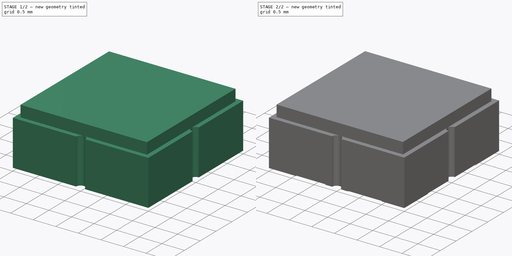
[diagram: build sequence overview — one tinted view per stage of 2, left to right]
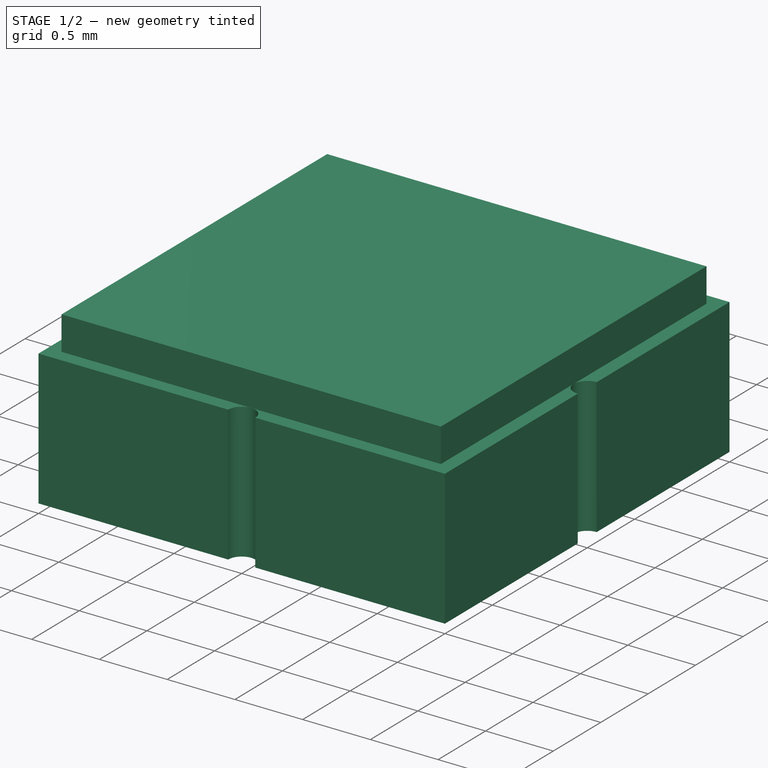
[diagram: stage 1 of 2 — iso view after this stage's code; geometry added in this stage tinted green]
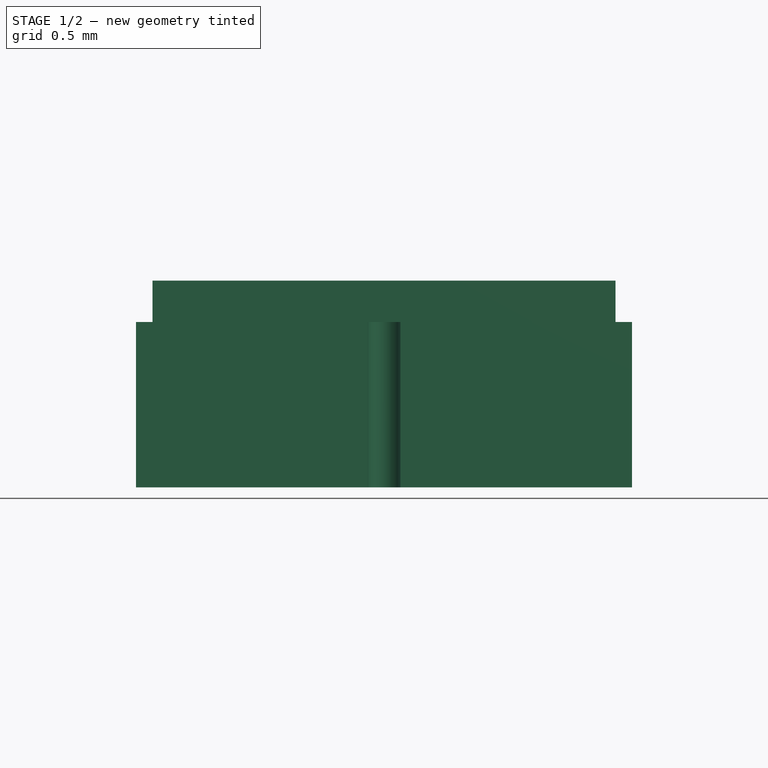
[diagram: stage 1 of 2 — front view after this stage's code; geometry added in this stage tinted green]
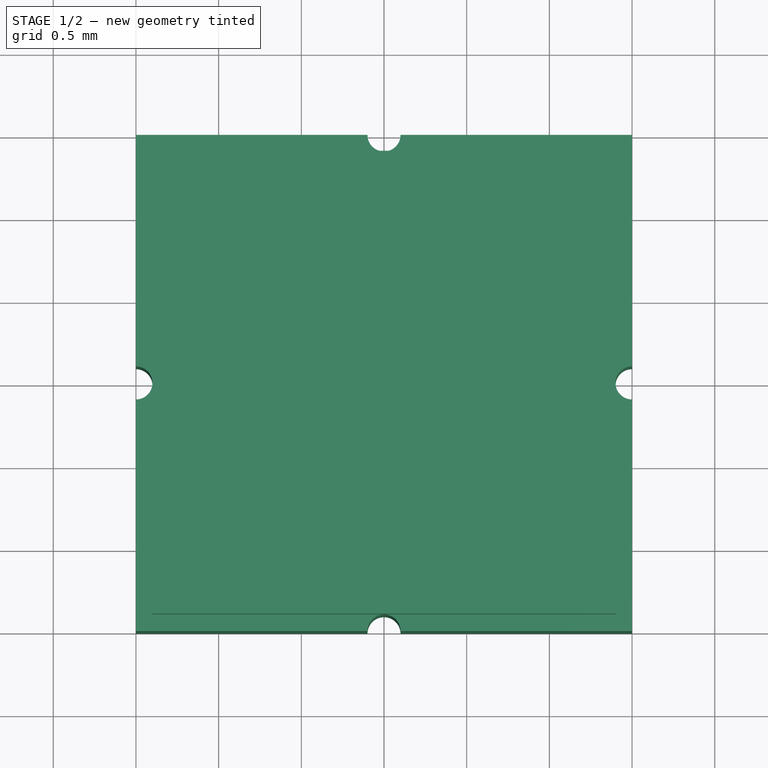
[diagram: stage 1 of 2 — top view after this stage's code; geometry added in this stage tinted green]
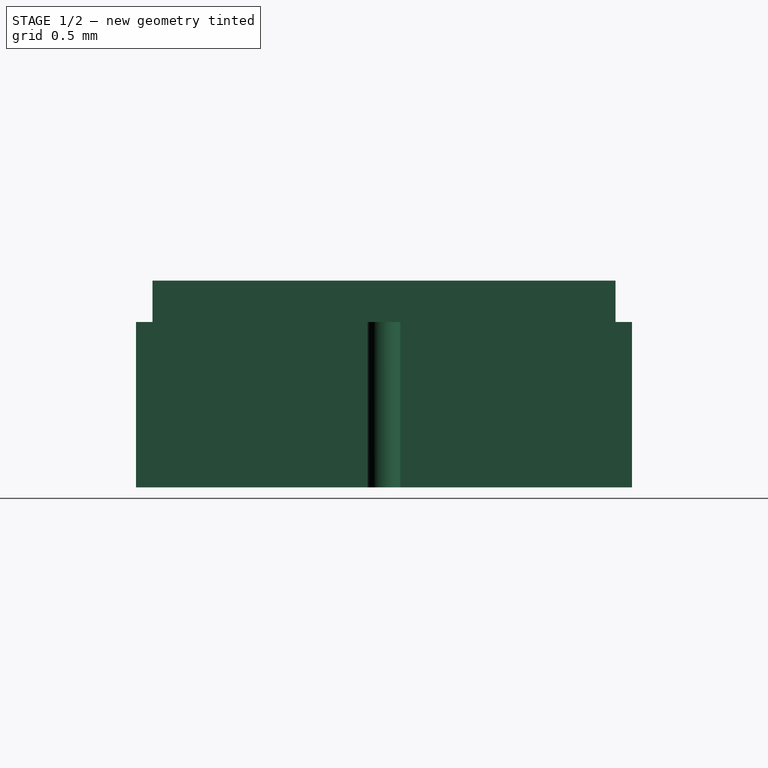
[diagram: stage 1 of 2 — right view after this stage's code; geometry added in this stage tinted green]
FCSTD DOCUMENT  (FreeCAD 0.19R)
Label: DCC6C
License: CC-BY-SA 4.0
LicenseURL: https://creativecommons.org/licenses/by-sa/4.0/
objects: Sketcher::SketchObject×3, PartDesign::Pad×3, PartDesign::Body×1
note: 10 computed .brp shape members not serialized (recipe doc carries the construction recipe); baked Part::Feature solids carry a one-line shape summary decoded from their .brp

FEATURE [Sketcher::SketchObject] Sketch
  FullyConstrained = true
  MapMode = 5
  Support = -> [XY_Plane]
  sketch-geometry (27):
    g0: Circle CenterX=0 CenterY=0 CenterZ=0 NormalX=0 NormalY=0 NormalZ=1 AngleXU=0 Radius=2.12132
    g1: GeomPoint X=-0.1 Y=-1.5 Z=0
    g2: GeomPoint X=0.1 Y=-1.5 Z=0
    g3: LineSegment StartX=-1.5 StartY=-1.5 StartZ=0 EndX=-0.1 EndY=-1.5 EndZ=0
    g4: LineSegment StartX=0.1 StartY=-1.5 StartZ=0 EndX=1.5 EndY=-1.5 EndZ=0
    g5: ArcOfCircle CenterX=0 CenterY=-1.5 CenterZ=0 NormalX=0 NormalY=0 NormalZ=1 AngleXU=0 Radius=0.1 StartAngle=6e-16 EndAngle=3.14159
    g6: GeomPoint X=1.5 Y=0.1 Z=0
    g7: GeomPoint X=-1.5 Y=-0.1 Z=0
    g8: GeomPoint X=-1.5 Y=0.1 Z=0
    g9: GeomPoint X=-0.1 Y=1.5 Z=0
    g10: GeomPoint X=0.1 Y=1.5 Z=0
    g11: LineSegment StartX=-1.5 StartY=1.5 StartZ=0 EndX=-1.5 EndY=0.1 EndZ=0
    g12: LineSegment StartX=-1.5 StartY=-0.1 StartZ=0 EndX=-1.5 EndY=-1.5 EndZ=0
    g13: LineSegment StartX=1.5 StartY=1.5 StartZ=0 EndX=1.5 EndY=0.1 EndZ=0
    g14: LineSegment StartX=1.5 StartY=-0.1 StartZ=0 EndX=1.5 EndY=-1.5 EndZ=0
    g15: GeomPoint X=1.5 Y=0 Z=0
    g16: GeomPoint X=-1.5 Y=0 Z=0
    g17: LineSegment StartX=-1.5 StartY=1.5 StartZ=0 EndX=-0.1 EndY=1.5 EndZ=0
    g18: LineSegment StartX=0.1 StartY=1.5 StartZ=0 EndX=1.5 EndY=1.5 EndZ=0
    g19: GeomPoint X=0 Y=1.5 Z=0
    g20: LineSegment StartX=0.1 StartY=-1.5 StartZ=0 EndX=-0.1 EndY=-1.5 EndZ=0
    g21: LineSegment StartX=1.5 StartY=-0.1 StartZ=0 EndX=1.5 EndY=0.1 EndZ=0
    g22: LineSegment StartX=-1.5 StartY=0.1 StartZ=0 EndX=-1.5 EndY=-0.1 EndZ=0
    g23: LineSegment StartX=0.1 StartY=1.5 StartZ=0 EndX=-0.1 EndY=1.5 EndZ=0
    g24: ArcOfCircle CenterX=-1.5 CenterY=0 CenterZ=0 NormalX=0 NormalY=0 NormalZ=1 AngleXU=0 Radius=0.1 StartAngle=4.71239 EndAngle=7.85398
    g25: ArcOfCircle CenterX=1.5 CenterY=0 CenterZ=0 NormalX=0 NormalY=0 NormalZ=1 AngleXU=0 Radius=0.1 StartAngle=1.5708 EndAngle=4.71239
    g26: ArcOfCircle CenterX=0 CenterY=1.5 CenterZ=0 NormalX=0 NormalY=0 NormalZ=1 AngleXU=0 Radius=0.1 StartAngle=3.14159 EndAngle=6.28319
  constraints (60):
    c: DistanceX(g11,g13) = 3
    c: DistanceY(g3,g11) = 3
    c: Coincident(g0,g-1)
    c: PointOnObject(g11,g0)
    c: PointOnObject(g13,g0)
    c: PointOnObject(g4,g0)
    c: Coincident(g3,g1)
    c: Horizontal(g3)
    c: Coincident(g4,g2)
    c: Horizontal(g4)
    c: PointOnObject(g5,g-2)
    c: Coincident(g5,g3)
    c: Coincident(g5,g4)
    c: Coincident(g11,g8)
    c: Vertical(g11)
    c: Coincident(g12,g7)
    c: Coincident(g12,g3)
    c: Vertical(g12)
    c: Coincident(g13,g6)
    c: Vertical(g13)
    c: Coincident(g14,g4)
    c: Vertical(g14)
    c: DistanceX(g3,g4) = 0.2
    c: PointOnObject(g15,g-1)
    c: PointOnObject(g16,g-1)
    c: Coincident(g17,g11)
    c: Coincident(g17,g9)
    c: Horizontal(g17)
    c: Coincident(g18,g10)
    c: Coincident(g18,g13)
    c: Horizontal(g18)
    c: Coincident(g20,g4)
    c: Coincident(g20,g3)
    c: Horizontal(g20)
    c: PointOnObject(g5,g20)
    c: Coincident(g21,g14)
    c: Coincident(g21,g13)
    c: Vertical(g21)
    c: Coincident(g22,g11)
    c: Coincident(g22,g12)
    c: Vertical(g22)
    c: Coincident(g23,g18)
    c: Coincident(g23,g17)
    c: Horizontal(g23)
    c: Equal(g23,g21)
    c: Equal(g21,g22)
    c: Equal(g22,g20)
    c: Coincident(g24,g11)
    c: Coincident(g24,g12)
    c: Coincident(g24,g16)
    c: PointOnObject(g24,g22)
    c: Coincident(g25,g14)
    c: Coincident(g25,g13)
    c: Coincident(g25,g15)
    c: PointOnObject(g25,g21)
    c: Coincident(g26,g17)
    c: Coincident(g26,g18)
    c: Coincident(g26,g19)
    c: PointOnObject(g26,g23)
    c: PointOnObject(g26,g-2)
FEATURE [PartDesign::Pad] Pad
  Direction = (1,1,1)
  Length = 1
  Length2 = 100
  Profile = -> Sketch
  Type = 0
FEATURE [Sketcher::SketchObject] Sketch001
  FullyConstrained = true
  MapMode = 5
  Placement = pos=(0,0,1) rot=(0,0,1;0rad)
  Support = -> [Pad]
  sketch-geometry (5):
    g0: LineSegment StartX=1.4 StartY=-1.4 StartZ=0 EndX=-1.4 EndY=-1.4 EndZ=0
    g1: LineSegment StartX=-1.4 StartY=-1.4 StartZ=0 EndX=-1.4 EndY=1.4 EndZ=0
    g2: LineSegment StartX=-1.4 StartY=1.4 StartZ=0 EndX=1.4 EndY=1.4 EndZ=0
    g3: LineSegment StartX=1.4 StartY=1.4 StartZ=0 EndX=1.4 EndY=-1.4 EndZ=0
    g4: Circle CenterX=0 CenterY=0 CenterZ=0 NormalX=0 NormalY=0 NormalZ=1 AngleXU=0 Radius=1.9799
  constraints (14):
    c: Coincident(g0,g1)
    c: Coincident(g1,g2)
    c: Coincident(g2,g3)
    c: Coincident(g3,g0)
    c: Horizontal(g0)
    c: Horizontal(g2)
    c: Vertical(g1)
    c: Vertical(g3)
    c: Coincident(g4,g-1)
    c: PointOnObject(g2,g4)
    c: PointOnObject(g1,g4)
    c: PointOnObject(g0,g4)
    c: DistanceX(g2,g2) = 2.8
    c: DistanceY(g1,g1) = 2.8
FEATURE [PartDesign::Pad] Pad001
  BaseFeature = -> Pad
  Direction = (1,1,1)
  Length = 0.25
  Length2 = 100
  Profile = -> Sketch001
  Type = 0
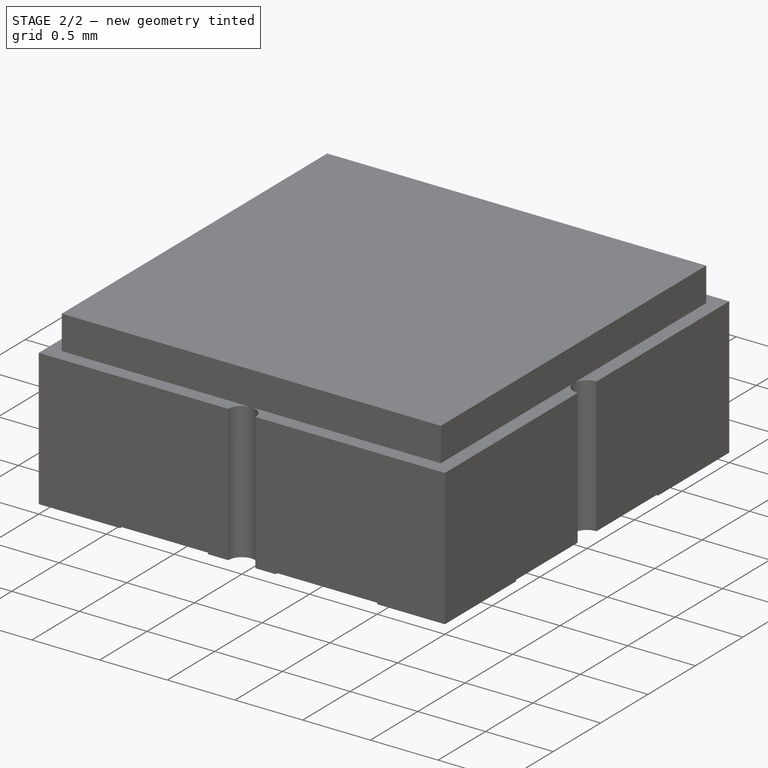
[diagram: stage 2 of 2 — iso view after this stage's code; geometry added in this stage tinted green]
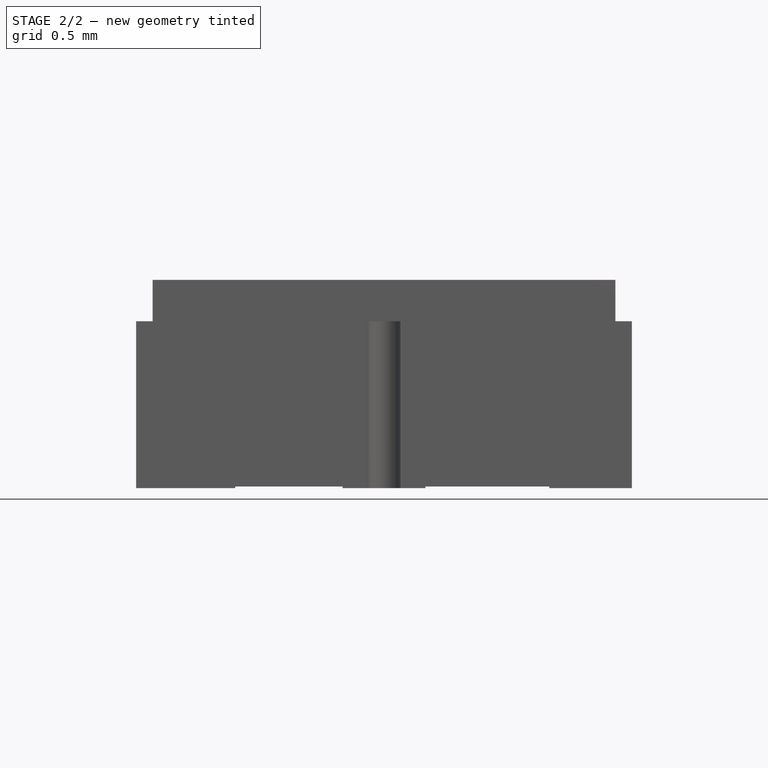
[diagram: stage 2 of 2 — front view after this stage's code; geometry added in this stage tinted green]
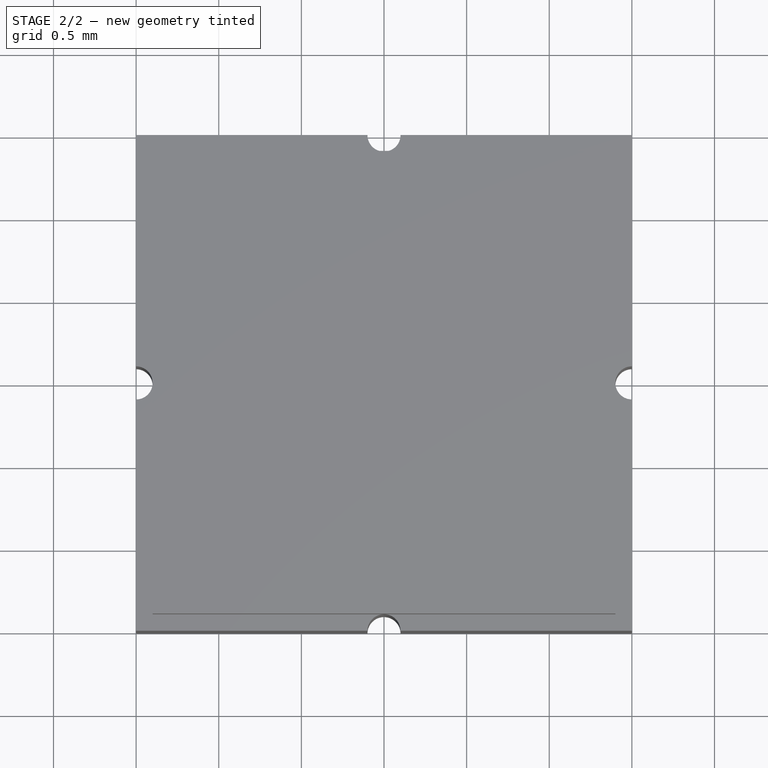
[diagram: stage 2 of 2 — top view after this stage's code; geometry added in this stage tinted green]
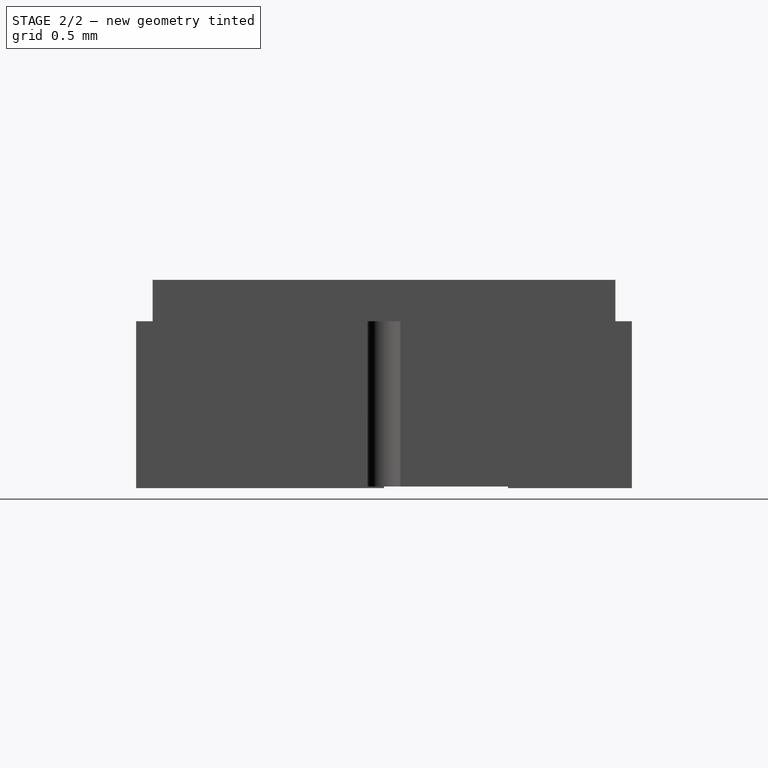
[diagram: stage 2 of 2 — right view after this stage's code; geometry added in this stage tinted green]
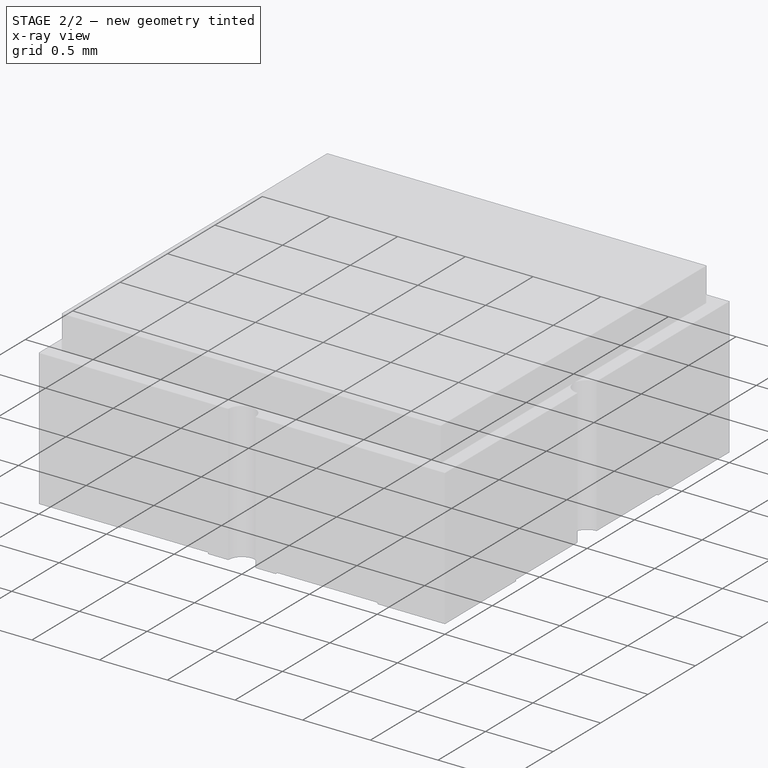
[diagram: stage 2 of 2 — x-ray composite at the iso view; earlier geometry ghosted, this stage's added geometry solid]
FEATURE [Sketcher::SketchObject] Sketch002
  ExternalGeometry = -> [Pad001]
  FullyConstrained = true
  MapMode = 5
  Placement = pos=(0,0,0) rot=(1,0,0;3.14159rad)
  Support = -> [Pad001]
  sketch-geometry (36):
    g0: LineSegment StartX=-1.5 StartY=1.5 StartZ=0 EndX=-0.9 EndY=1.5 EndZ=0
    g1: LineSegment StartX=-0.9 StartY=1.5 StartZ=0 EndX=-0.9 EndY=0 EndZ=0
    g2: LineSegment StartX=-0.9 StartY=0 StartZ=0 EndX=-1.4 EndY=0 EndZ=0
    g3: LineSegment StartX=0.25 StartY=0.75 StartZ=0 EndX=-0.25 EndY=0.75 EndZ=0
    g4: LineSegment StartX=-0.25 StartY=0.75 StartZ=0 EndX=-0.25 EndY=1.5 EndZ=0
    g5: LineSegment StartX=0.25 StartY=1.5 StartZ=0 EndX=0.25 EndY=0.75 EndZ=0
    g6: LineSegment StartX=1.5 StartY=1.5 StartZ=0 EndX=1 EndY=1.5 EndZ=0
    g7: LineSegment StartX=1 StartY=1.5 StartZ=0 EndX=1 EndY=0.75 EndZ=0
    g8: LineSegment StartX=1 StartY=0.75 StartZ=0 EndX=1.5 EndY=0.75 EndZ=0
    g9: LineSegment StartX=1.5 StartY=0.75 StartZ=0 EndX=1.5 EndY=1.5 EndZ=0
    g10: LineSegment StartX=1.5 StartY=-1.5 StartZ=0 EndX=1 EndY=-1.5 EndZ=0
    g11: LineSegment StartX=1 StartY=-1.5 StartZ=0 EndX=1 EndY=-0.75 EndZ=0
    g12: LineSegment StartX=1 StartY=-0.75 StartZ=0 EndX=1.5 EndY=-0.75 EndZ=0
    g13: LineSegment StartX=1.5 StartY=-0.75 StartZ=0 EndX=1.5 EndY=-1.5 EndZ=0
    g14: LineSegment StartX=-0.25 StartY=-1.5 StartZ=0 EndX=-0.25 EndY=-0.75 EndZ=0
    g15: LineSegment StartX=-0.25 StartY=-0.75 StartZ=0 EndX=0.25 EndY=-0.75 EndZ=0
    g16: LineSegment StartX=0.25 StartY=-0.75 StartZ=0 EndX=0.25 EndY=-1.5 EndZ=0
    g17: LineSegment StartX=-1 StartY=-1.5 StartZ=0 EndX=-1.5 EndY=-1.5 EndZ=0
    g18: LineSegment StartX=-1.5 StartY=-1.5 StartZ=0 EndX=-1.5 EndY=-0.75 EndZ=0
    g19: LineSegment StartX=-1.5 StartY=-0.75 StartZ=0 EndX=-1 EndY=-0.75 EndZ=0
    g20: LineSegment StartX=-1 StartY=-0.75 StartZ=0 EndX=-1 EndY=-1.5 EndZ=0
    g21: LineSegment StartX=0.1 StartY=1.5 StartZ=0 EndX=-0.1 EndY=1.5 EndZ=0
    g22: LineSegment StartX=0.1 StartY=-1.5 StartZ=0 EndX=-0.1 EndY=-1.5 EndZ=0
    g23: GeomPoint X=0 Y=1.5 Z=0
    g24: ArcOfCircle CenterX=0 CenterY=1.5 CenterZ=0 NormalX=0 NormalY=0 NormalZ=1 AngleXU=0 Radius=0.25 StartAngle=1.3e-15 EndAngle=3.14159
    g25: GeomPoint X=0 Y=-1.5 Z=0
    g26: ArcOfCircle CenterX=0 CenterY=-1.5 CenterZ=0 NormalX=0 NormalY=0 NormalZ=1 AngleXU=0 Radius=0.25 StartAngle=3.14159 EndAngle=6.28319
    g27: LineSegment StartX=0.25 StartY=-1.5 StartZ=0 EndX=0.1 EndY=-1.5 EndZ=0
    g28: LineSegment StartX=-0.1 StartY=-1.5 StartZ=0 EndX=-0.25 EndY=-1.5 EndZ=0
    g29: ArcOfCircle CenterX=0 CenterY=-1.5 CenterZ=0 NormalX=0 NormalY=0 NormalZ=1 AngleXU=0 Radius=0.1 StartAngle=-9e-16 EndAngle=3.14159
    g30: LineSegment StartX=-0.25 StartY=1.5 StartZ=0 EndX=-0.1 EndY=1.5 EndZ=0
    g31: LineSegment StartX=0.1 StartY=1.5 StartZ=0 EndX=0.25 EndY=1.5 EndZ=0
    g32: ArcOfCircle CenterX=0 CenterY=1.5 CenterZ=0 NormalX=0 NormalY=0 NormalZ=1 AngleXU=0 Radius=0.1 StartAngle=3.14159 EndAngle=6.28319
    g33: LineSegment StartX=-1.5 StartY=1.5 StartZ=0 EndX=-1.5 EndY=0.1 EndZ=0
    g34: LineSegment StartX=-1.5 StartY=0.1 StartZ=0 EndX=-1.5 EndY=0 EndZ=0
    g35: ArcOfCircle CenterX=-1.5 CenterY=0 CenterZ=0 NormalX=0 NormalY=0 NormalZ=1 AngleXU=0 Radius=0.1 StartAngle=0 EndAngle=1.5708
  constraints (93):
    c: Coincident(g0,g1)
    c: Coincident(g1,g2)
    c: Horizontal(g0)
    c: Horizontal(g2)
    c: Vertical(g1)
    c: DistanceX(g0,g0) = 0.6
    c: Coincident(g3,g4)
    c: Coincident(g5,g3)
    c: Horizontal(g3)
    c: Vertical(g4)
    c: Vertical(g5)
    c: Coincident(g0,g-4)
    c: Coincident(g6,g7)
    c: Coincident(g7,g8)
    c: Coincident(g8,g9)
    c: Coincident(g9,g6)
    c: Horizontal(g6)
    c: Horizontal(g8)
    c: Vertical(g7)
    c: Vertical(g9)
    c: Coincident(g10,g11)
    c: Coincident(g11,g12)
    c: Coincident(g12,g13)
    c: Coincident(g13,g10)
    c: Horizontal(g10)
    c: Horizontal(g12)
    c: Vertical(g11)
    c: Vertical(g13)
    c: Coincident(g14,g15)
    c: Coincident(g15,g16)
    c: Horizontal(g15)
    c: Vertical(g14)
    c: Vertical(g16)
    c: Coincident(g17,g18)
    c: Coincident(g18,g19)
    c: Coincident(g19,g20)
    c: Coincident(g20,g17)
    c: Horizontal(g17)
    c: Horizontal(g19)
    c: Vertical(g18)
    c: Vertical(g20)
    c: Coincident(g17,g-10)
    c: Coincident(g10,g-8)
    c: Coincident(g6,g-6)
    c: Equal(g3,g8)
    c: Equal(g8,g12)
    c: Equal(g12,g15)
    c: Equal(g15,g19)
    c: Equal(g19,g2)
    c: Equal(g7,g4)
    c: Equal(g4,g11)
    c: Equal(g11,g14)
    c: Equal(g14,g20)
    c: DistanceY(g20,g20) = 0.75
    c: Coincident(g21,g-5)
    c: Coincident(g21,g-3)
    c: Coincident(g22,g-8)
    c: Coincident(g22,g-9)
    c: PointOnObject(g23,g21)
    c: Coincident(g24,g23)
    c: Coincident(g24,g4)
    c: PointOnObject(g25,g22)
    c: Coincident(g26,g25)
    c: Coincident(g27,g16)
    c: Coincident(g27,g22)
    c: Horizontal(g27)
    c: Coincident(g28,g22)
    c: Coincident(g28,g14)
    c: Horizontal(g28)
    c: Coincident(g29,g25)
    c: Coincident(g29,g28)
    c: Coincident(g29,g27)
    c: Coincident(g26,g16)
    c: Coincident(g26,g14)
    c: Coincident(g5,g24)
    c: PointOnObject(g4,g-3)
    c: PointOnObject(g5,g-5)
    c: Coincident(g30,g4)
    c: Coincident(g30,g21)
    c: Coincident(g31,g21)
    c: Coincident(g31,g5)
    c: Coincident(g32,g23)
    c: Coincident(g32,g30)
    c: Coincident(g32,g31)
    c: Coincident(g33,g0)
    c: Coincident(g33,g-4)
    c: Coincident(g34,g33)
    c: PointOnObject(g34,g-1)
    c: Vertical(g34)
    c: Coincident(g35,g34)
    c: Coincident(g35,g33)
    c: PointOnObject(g35,g-1)
    c: Coincident(g2,g35)
FEATURE [PartDesign::Pad] Pad002
  BaseFeature = -> Pad001
  Direction = (1,1,1)
  Length = 0.01
  Length2 = 100
  Profile = -> Sketch002
  Type = 0
FEATURE [PartDesign::Body] Body
  Group = -> [Sketch,Pad,Sketch001,Pad001,Sketch002,Pad002]
  Origin = -> Origin
  Tip = -> Pad002
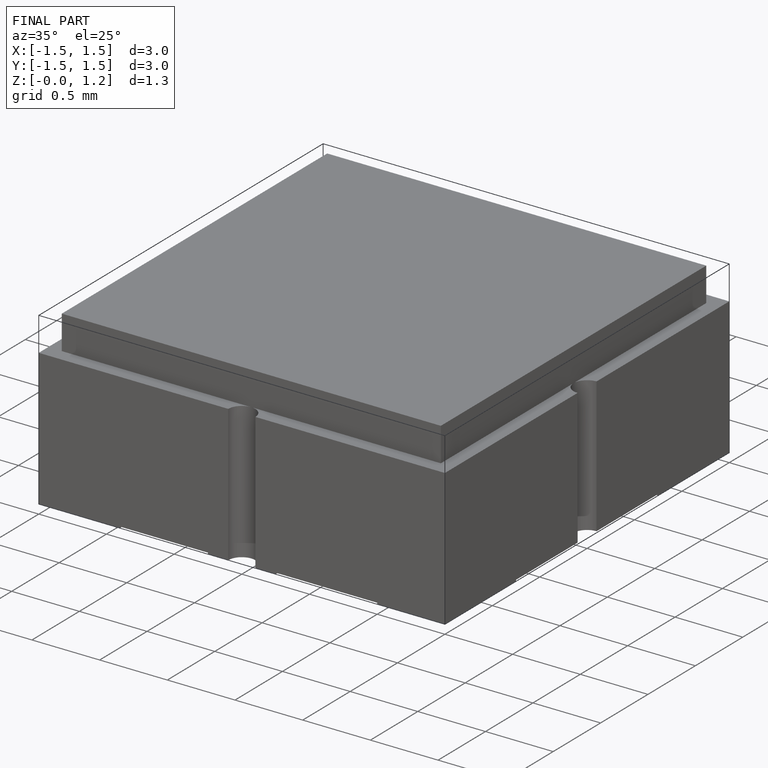
[diagram: finished part — iso view with bounding-box wireframe]
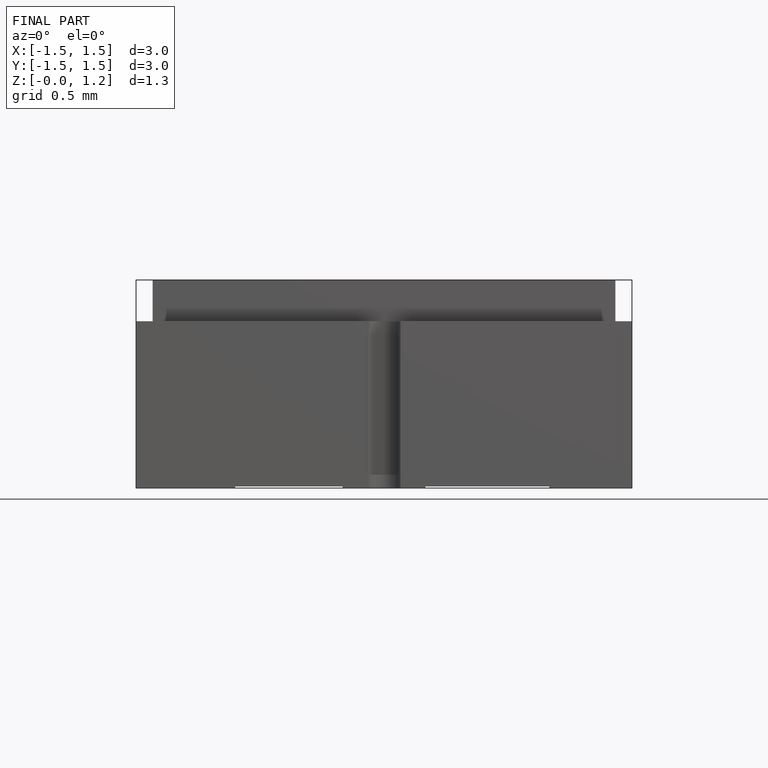
[diagram: finished part — front view with bounding-box wireframe]
